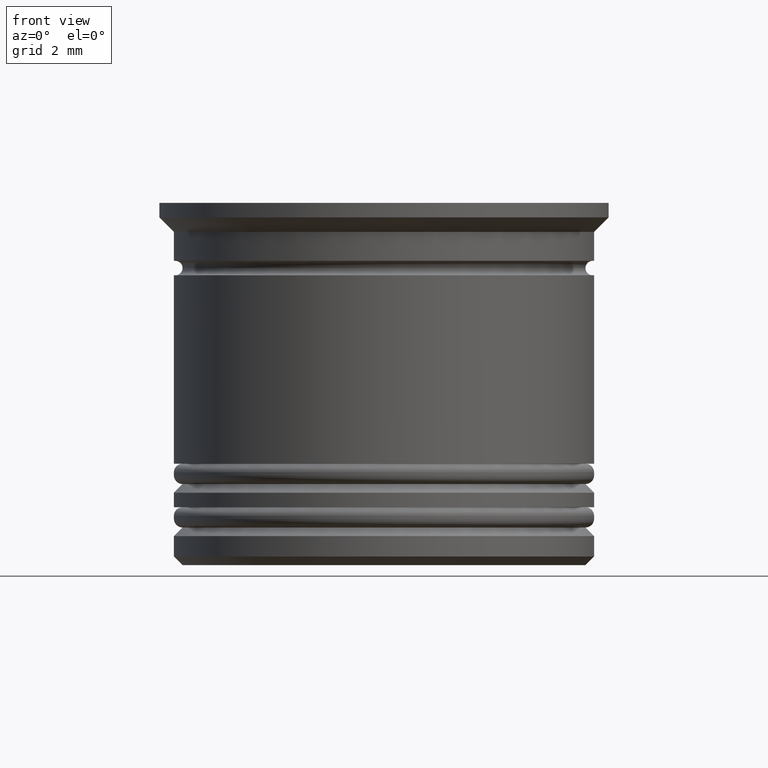
[diagram: clean part render]
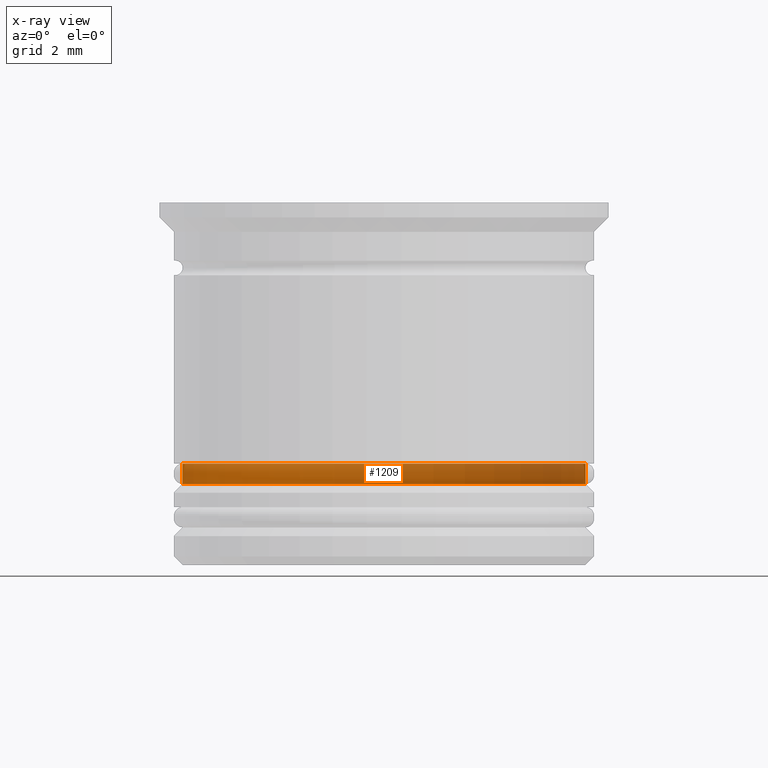
[diagram: x-ray — body ghosted, one internal face saturated and labeled with its STEP entity id]
A machine part, front view, then the same camera in x-ray: the body is ghosted and one INTERNAL B-rep face — a face not visible from any outside direction — is saturated and labeled: STEP entity #1209.
In plain terms, the highlighted cylindrical surface (partial cylindrical patch) has radius 6.95 mm, axis along (-0, -0, 1).
Its self-contained STEP definition (entity closure, byte-faithful):
#5 = CARTESIAN_POINT ( 'NONE',  ( 6.950000000000000178, 0.000000000000000000, -9.000000000000001776 ) ) ;
#29 = CARTESIAN_POINT ( 'NONE',  ( 0.000000000000000000, 0.000000000000000000, -9.000000000000001776 ) ) ;
#280 = EDGE_CURVE ( 'NONE', #418, #1794, #1497, .T. ) ;
#394 = LINE ( 'NONE', #1474, #1717 ) ;
#418 = VERTEX_POINT ( 'NONE', #1987 ) ;
#467 = DIRECTION ( 'NONE',  ( 1.000000000000000000, 0.000000000000000000, 0.000000000000000000 ) ) ;
#472 = CIRCLE ( 'NONE', #1305, 6.950000000000000178 ) ;
#563 = CARTESIAN_POINT ( 'NONE',  ( -6.950000000000000178, 8.511295254074105418E-16, -9.000000000000001776 ) ) ;
#614 = CARTESIAN_POINT ( 'NONE',  ( 0.000000000000000000, 0.000000000000000000, 0.000000000000000000 ) ) ;
#632 = EDGE_CURVE ( 'NONE', #1211, #1159, #472, .T. ) ;
#683 = DIRECTION ( 'NONE',  ( -0.000000000000000000, -0.000000000000000000, 1.000000000000000000 ) ) ;
#754 = EDGE_CURVE ( 'NONE', #1794, #1159, #394, .T. ) ;
#790 = DIRECTION ( 'NONE',  ( 1.000000000000000000, 0.000000000000000000, 0.000000000000000000 ) ) ;
#791 = AXIS2_PLACEMENT_3D ( 'NONE', #614, #1412, #467 ) ;
#891 = ORIENTED_EDGE ( 'NONE', *, *, #632, .F. ) ;
#910 = FACE_OUTER_BOUND ( 'NONE', #937, .T. ) ;
#937 = EDGE_LOOP ( 'NONE', ( #1613, #1147, #891, #1223 ) ) ;
#953 = VECTOR ( 'NONE', #1411, 1000.000000000000000 ) ;
#993 = DIRECTION ( 'NONE',  ( -0.000000000000000000, -0.000000000000000000, 1.000000000000000000 ) ) ;
#1147 = ORIENTED_EDGE ( 'NONE', *, *, #754, .T. ) ;
#1159 = VERTEX_POINT ( 'NONE', #563 ) ;
#1173 = DIRECTION ( 'NONE',  ( -1.000000000000000000, 0.000000000000000000, 0.000000000000000000 ) ) ;
#1209 = ADVANCED_FACE ( 'NONE', ( #910 ), #1989, .T. ) ;
#1211 = VERTEX_POINT ( 'NONE', #5 ) ;
#1223 = ORIENTED_EDGE ( 'NONE', *, *, #1765, .F. ) ;
#1305 = AXIS2_PLACEMENT_3D ( 'NONE', #29, #1550, #790 ) ;
#1329 = CARTESIAN_POINT ( 'NONE',  ( 0.000000000000000000, 0.000000000000000000, -9.700000000000006395 ) ) ;
#1369 = AXIS2_PLACEMENT_3D ( 'NONE', #1329, #993, #1173 ) ;
#1411 = DIRECTION ( 'NONE',  ( -0.000000000000000000, -0.000000000000000000, 1.000000000000000000 ) ) ;
#1412 = DIRECTION ( 'NONE',  ( -0.000000000000000000, -0.000000000000000000, 1.000000000000000000 ) ) ;
#1474 = CARTESIAN_POINT ( 'NONE',  ( -6.950000000000000178, 8.511295254074105418E-16, 0.000000000000000000 ) ) ;
#1497 = CIRCLE ( 'NONE', #1369, 6.950000000000000178 ) ;
#1550 = DIRECTION ( 'NONE',  ( -0.000000000000000000, -0.000000000000000000, 1.000000000000000000 ) ) ;
#1565 = LINE ( 'NONE', #1877, #953 ) ;
#1613 = ORIENTED_EDGE ( 'NONE', *, *, #280, .T. ) ;
#1717 = VECTOR ( 'NONE', #683, 1000.000000000000000 ) ;
#1765 = EDGE_CURVE ( 'NONE', #418, #1211, #1565, .T. ) ;
#1794 = VERTEX_POINT ( 'NONE', #1840 ) ;
#1840 = CARTESIAN_POINT ( 'NONE',  ( -6.950000000000000178, 8.511295254074105418E-16, -9.700000000000006395 ) ) ;
#1877 = CARTESIAN_POINT ( 'NONE',  ( 6.950000000000000178, 0.000000000000000000, 0.000000000000000000 ) ) ;
#1987 = CARTESIAN_POINT ( 'NONE',  ( 6.950000000000000178, 0.000000000000000000, -9.700000000000006395 ) ) ;
#1989 = CYLINDRICAL_SURFACE ( 'NONE', #791, 6.950000000000000178 ) ;